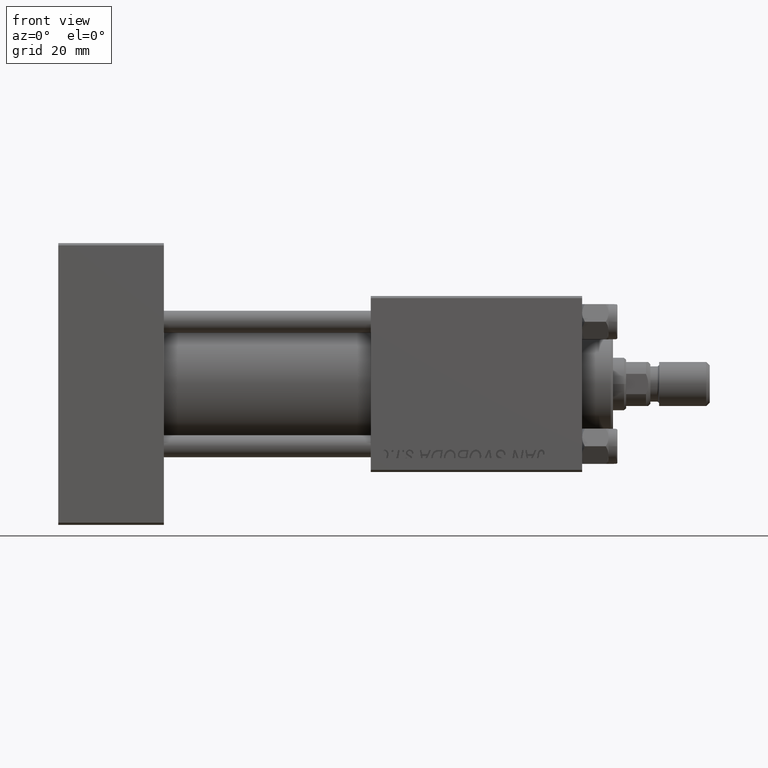
[diagram: clean part render]
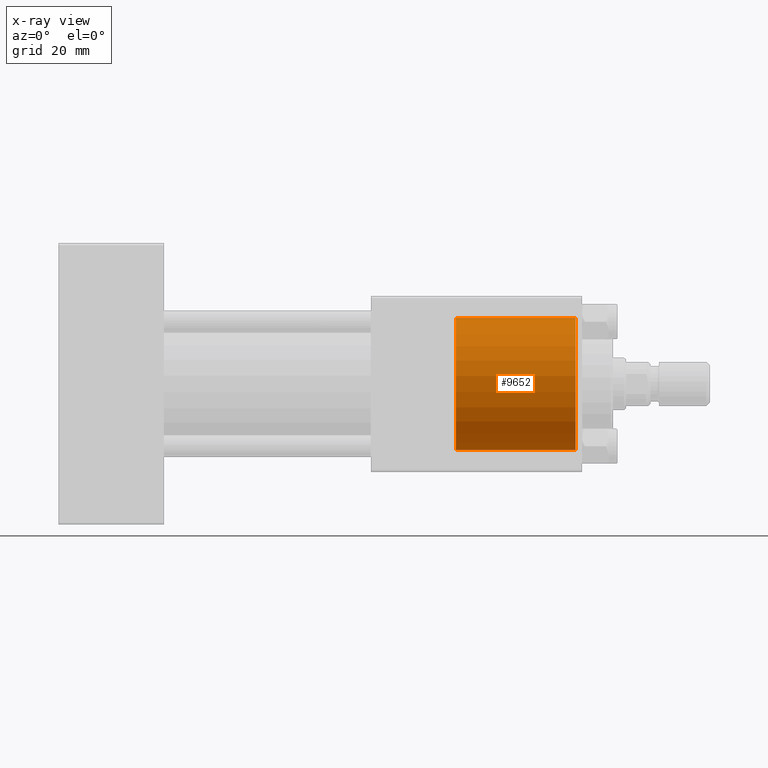
[diagram: x-ray — body ghosted, one internal face saturated and labeled with its STEP entity id]
A machine part, front view, then the same camera in x-ray: the body is ghosted and one INTERNAL B-rep face — a face not visible from any outside direction — is saturated and labeled: STEP entity #9652.
In plain terms, the highlighted cylindrical surface (partial cylindrical patch) has radius 15 mm, axis along (1, 0, 0).
Its self-contained STEP definition (entity closure, byte-faithful):
#2072 = VERTEX_POINT ( 'NONE', #41089 ) ;
#2379 = CARTESIAN_POINT ( 'NONE',  ( 117.5000000000000142, 0.000000000000000000, -15.00000000000000000 ) ) ;
#3396 = CARTESIAN_POINT ( 'NONE',  ( 90.30000000000001137, 0.000000000000000000, -15.00000000000000000 ) ) ;
#6401 = EDGE_CURVE ( 'NONE', #32228, #17924, #8211, .T. ) ;
#6462 = CARTESIAN_POINT ( 'NONE',  ( 90.30000000000001137, 0.000000000000000000, -15.00000000000000000 ) ) ;
#6627 = CARTESIAN_POINT ( 'NONE',  ( 90.30000000000001137, 0.000000000000000000, 0.000000000000000000 ) ) ;
#8211 = CIRCLE ( 'NONE', #10646, 15.00000000000000000 ) ;
#9652 = ADVANCED_FACE ( 'NONE', ( #9937 ), #41521, .F. ) ;
#9937 = FACE_OUTER_BOUND ( 'NONE', #49002, .T. ) ;
#10444 = CARTESIAN_POINT ( 'NONE',  ( 117.5000000000000142, 0.000000000000000000, 0.000000000000000000 ) ) ;
#10646 = AXIS2_PLACEMENT_3D ( 'NONE', #39132, #19515, #19021 ) ;
#11149 = EDGE_CURVE ( 'NONE', #32228, #2072, #47534, .T. ) ;
#16128 = EDGE_CURVE ( 'NONE', #2072, #36426, #23996, .T. ) ;
#17924 = VERTEX_POINT ( 'NONE', #6462 ) ;
#19021 = DIRECTION ( 'NONE',  ( 0.000000000000000000, 0.000000000000000000, -1.000000000000000000 ) ) ;
#19515 = DIRECTION ( 'NONE',  ( 1.000000000000000000, 0.000000000000000000, 0.000000000000000000 ) ) ;
#22178 = DIRECTION ( 'NONE',  ( 0.000000000000000000, 0.000000000000000000, -1.000000000000000000 ) ) ;
#22191 = VECTOR ( 'NONE', #39408, 1000.000000000000000 ) ;
#23996 = CIRCLE ( 'NONE', #38669, 15.00000000000000000 ) ;
#24488 = ORIENTED_EDGE ( 'NONE', *, *, #16128, .T. ) ;
#25986 = DIRECTION ( 'NONE',  ( 0.000000000000000000, 0.000000000000000000, 1.000000000000000000 ) ) ;
#28184 = ORIENTED_EDGE ( 'NONE', *, *, #11149, .T. ) ;
#29904 = DIRECTION ( 'NONE',  ( 1.000000000000000000, -0.000000000000000000, -0.000000000000000000 ) ) ;
#32228 = VERTEX_POINT ( 'NONE', #43421 ) ;
#33138 = DIRECTION ( 'NONE',  ( 1.000000000000000000, 0.000000000000000000, 0.000000000000000000 ) ) ;
#34978 = ORIENTED_EDGE ( 'NONE', *, *, #6401, .F. ) ;
#36426 = VERTEX_POINT ( 'NONE', #2379 ) ;
#37121 = VECTOR ( 'NONE', #29904, 1000.000000000000000 ) ;
#37710 = DIRECTION ( 'NONE',  ( 1.000000000000000000, -0.000000000000000000, -0.000000000000000000 ) ) ;
#38070 = LINE ( 'NONE', #3396, #37121 ) ;
#38669 = AXIS2_PLACEMENT_3D ( 'NONE', #10444, #33138, #25986 ) ;
#39132 = CARTESIAN_POINT ( 'NONE',  ( 90.30000000000001137, 0.000000000000000000, 0.000000000000000000 ) ) ;
#39408 = DIRECTION ( 'NONE',  ( 1.000000000000000000, -0.000000000000000000, -0.000000000000000000 ) ) ;
#39897 = CARTESIAN_POINT ( 'NONE',  ( 90.30000000000001137, 1.836970198721029589E-15, 15.00000000000000000 ) ) ;
#41089 = CARTESIAN_POINT ( 'NONE',  ( 117.5000000000000142, 1.836970198721029589E-15, 15.00000000000000000 ) ) ;
#41521 = CYLINDRICAL_SURFACE ( 'NONE', #47337, 15.00000000000000000 ) ;
#43421 = CARTESIAN_POINT ( 'NONE',  ( 90.30000000000001137, 1.836970198721029589E-15, 15.00000000000000000 ) ) ;
#46384 = ORIENTED_EDGE ( 'NONE', *, *, #48659, .F. ) ;
#47337 = AXIS2_PLACEMENT_3D ( 'NONE', #6627, #37710, #22178 ) ;
#47534 = LINE ( 'NONE', #39897, #22191 ) ;
#48659 = EDGE_CURVE ( 'NONE', #17924, #36426, #38070, .T. ) ;
#49002 = EDGE_LOOP ( 'NONE', ( #34978, #28184, #24488, #46384 ) ) ;